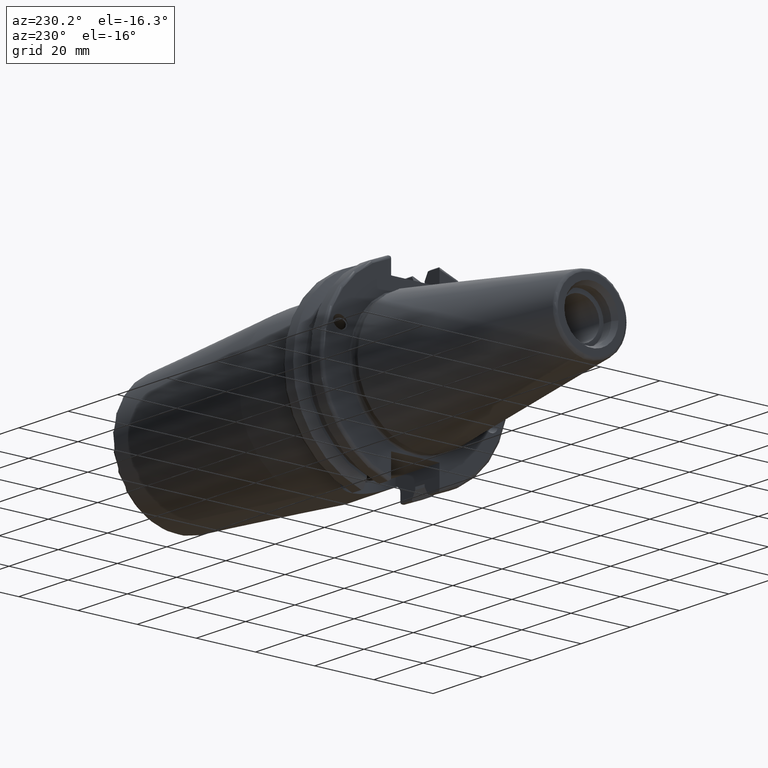
[diagram: clean part render]
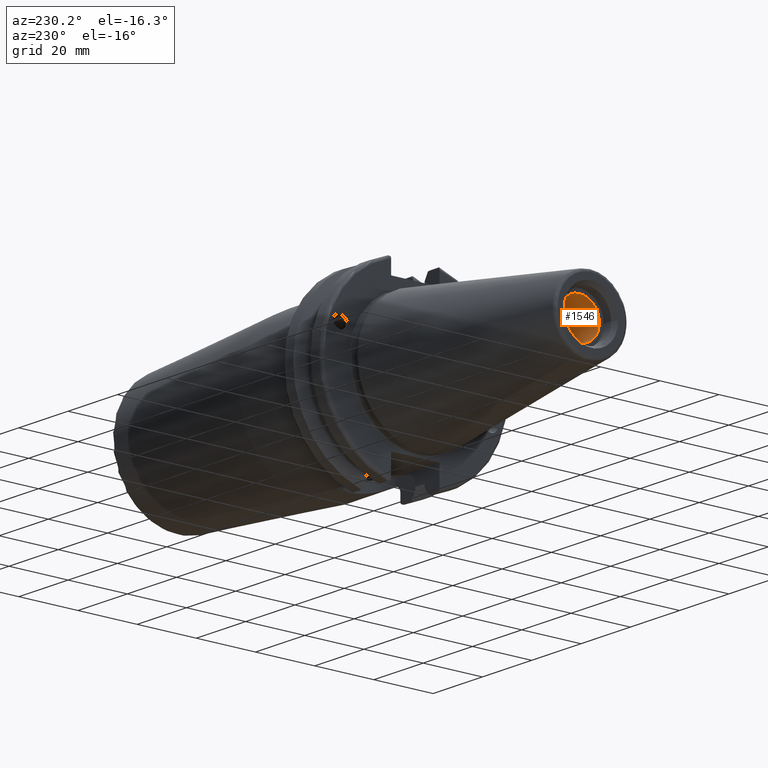
[diagram: same view with one face highlighted and labeled with its STEP entity id]
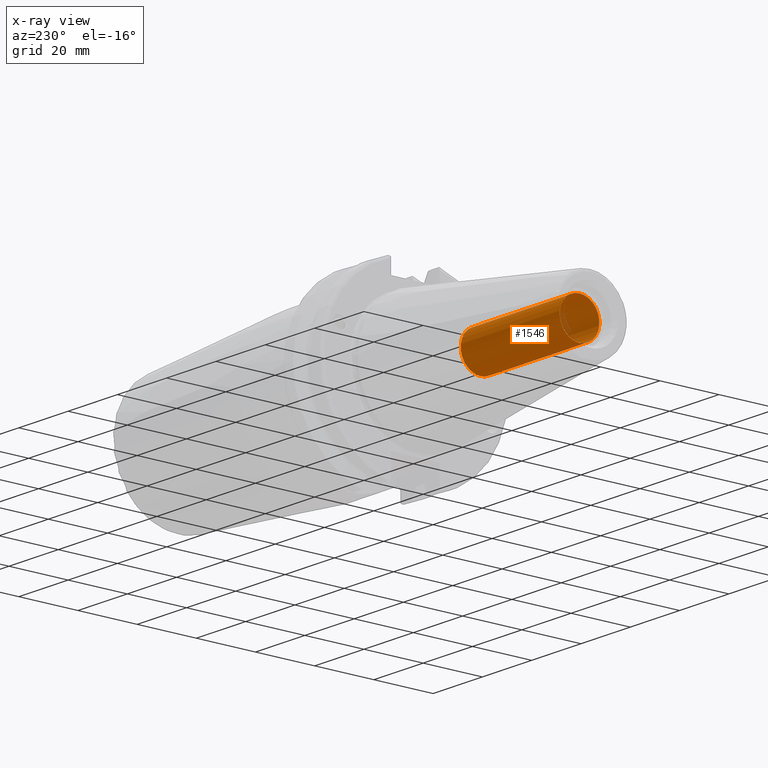
[diagram: x-ray of the same camera — body ghosted, the highlighted face saturated]
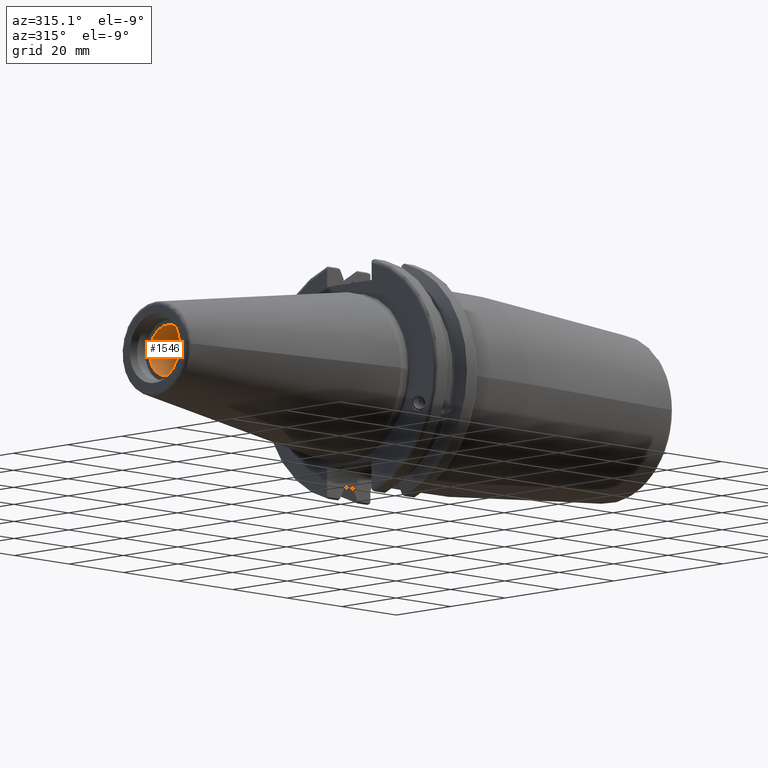
[diagram: same view with one face highlighted and labeled with its STEP entity id]
A machine part, auxiliary view. The second image highlights one B-rep face of the part: STEP entity #1546.
The next image is the same camera in x-ray: the body ghosted, the highlighted face saturated — about 2% of this face is hidden behind the body in this view.
A second angle (auxiliary view) of the same face is appended — the face is thin or edge-on in the first view.
In plain terms, the highlighted cylindrical surface (bore or boss wall) has radius 6.6929 mm, axis along (-1, 0, 0).
Its self-contained STEP definition (entity closure, byte-faithful):
#164=FACE_OUTER_BOUND('',#260,.T.);
#260=EDGE_LOOP('',(#1229,#1230,#1231,#1232));
#354=CIRCLE('',#1719,6.6929);
#355=CIRCLE('',#1721,6.6929);
#431=LINE('',#2820,#517);
#517=VECTOR('',#2061,6.6929);
#703=VERTEX_POINT('',#2814);
#704=VERTEX_POINT('',#2818);
#899=EDGE_CURVE('',#703,#703,#354,.T.);
#901=EDGE_CURVE('',#704,#704,#355,.T.);
#902=EDGE_CURVE('',#704,#703,#431,.T.);
#1229=ORIENTED_EDGE('',*,*,#901,.F.);
#1230=ORIENTED_EDGE('',*,*,#902,.T.);
#1231=ORIENTED_EDGE('',*,*,#899,.F.);
#1232=ORIENTED_EDGE('',*,*,#902,.F.);
#1492=CYLINDRICAL_SURFACE('',#1720,6.6929);
#1546=ADVANCED_FACE('',(#164),#1492,.F.);
#1719=AXIS2_PLACEMENT_3D('',#2815,#2054,#2055);
#1720=AXIS2_PLACEMENT_3D('',#2817,#2057,#2058);
#1721=AXIS2_PLACEMENT_3D('',#2819,#2059,#2060);
#2054=DIRECTION('center_axis',(-1.,0.,0.));
#2055=DIRECTION('ref_axis',(0.,0.,1.));
#2057=DIRECTION('center_axis',(-1.,0.,0.));
#2058=DIRECTION('ref_axis',(0.,0.,1.));
#2059=DIRECTION('center_axis',(1.,0.,0.));
#2060=DIRECTION('ref_axis',(0.,0.,1.));
#2061=DIRECTION('',(1.,0.,0.));
#2814=CARTESIAN_POINT('',(-23.25,-8.19643856201332E-16,-6.6929));
#2815=CARTESIAN_POINT('Origin',(-23.25,0.,0.));
#2817=CARTESIAN_POINT('Origin',(-45.75,0.,0.));
#2818=CARTESIAN_POINT('',(-63.45,8.19643856201332E-16,-6.6929));
#2819=CARTESIAN_POINT('Origin',(-63.45,0.,0.));
#2820=CARTESIAN_POINT('',(-45.75,-8.19643856201332E-16,-6.6929));